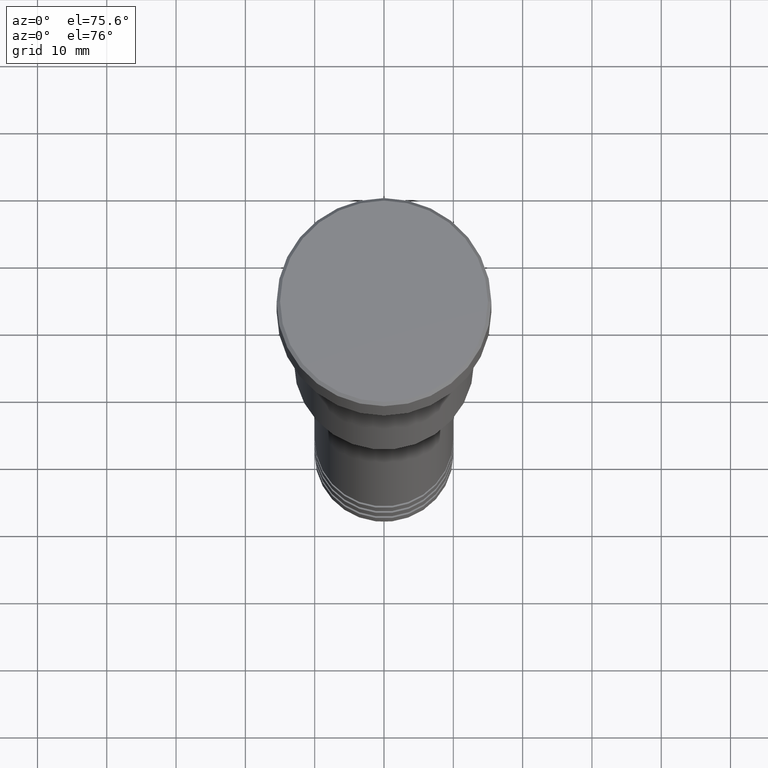
[diagram: clean part render]
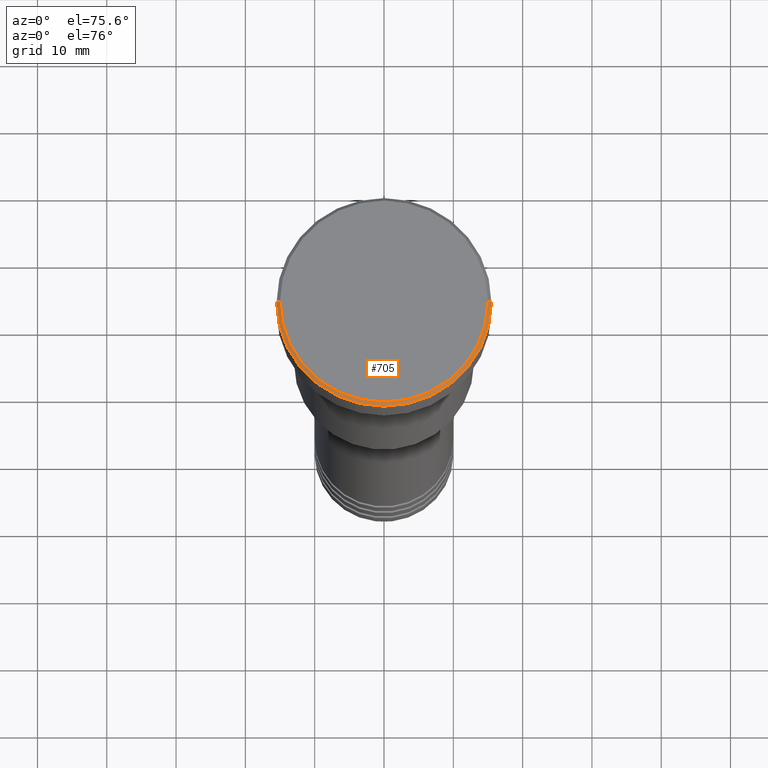
[diagram: same view with one face highlighted and labeled with its STEP entity id]
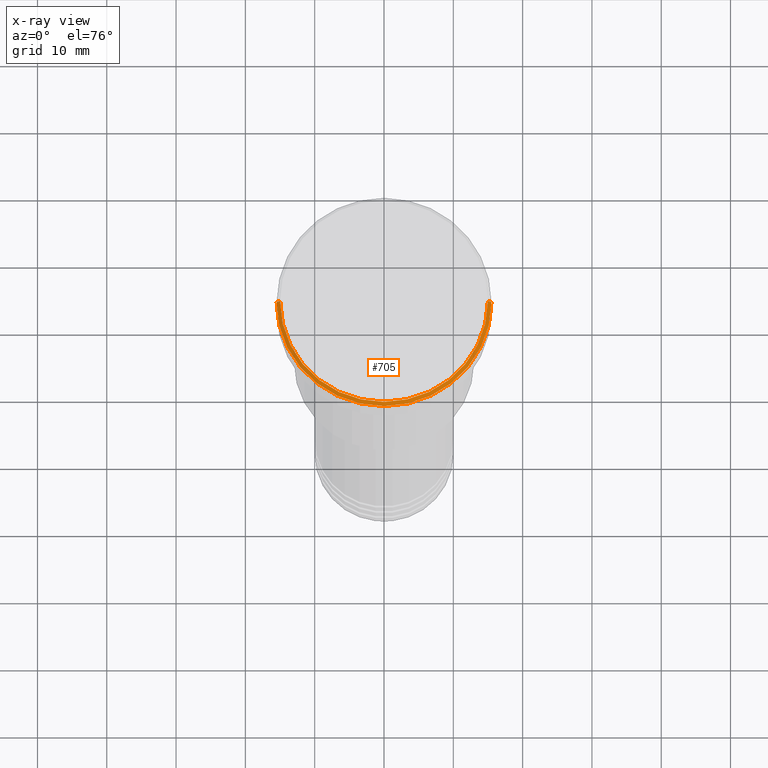
[diagram: x-ray of the same camera — body ghosted, the highlighted face saturated]
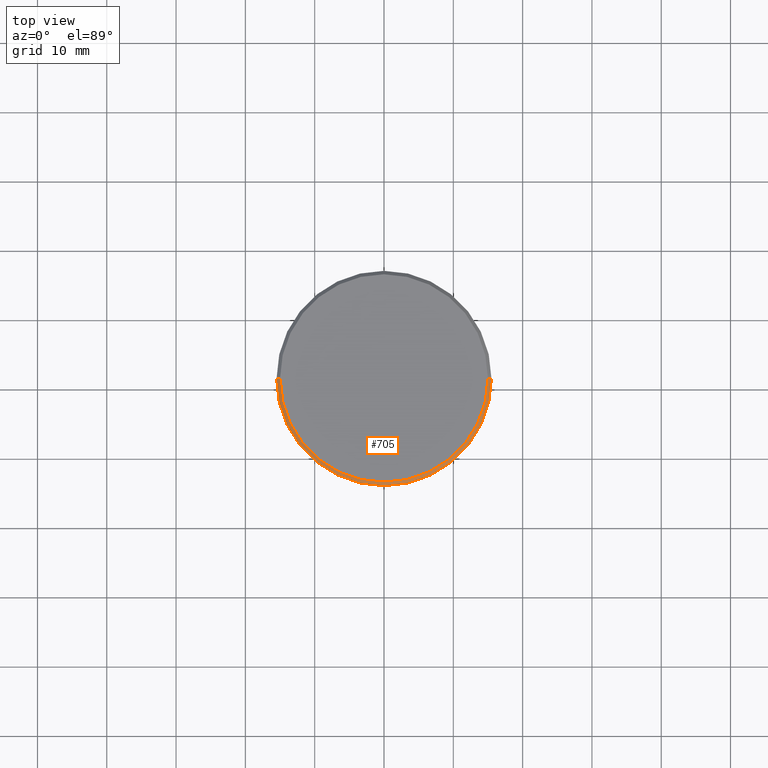
[diagram: same view with one face highlighted and labeled with its STEP entity id]
A machine part, auxiliary view. The second image highlights one B-rep face of the part: STEP entity #705.
The next image is the same camera in x-ray: the body ghosted, the highlighted face saturated — about 0% of this face is hidden behind the body in this view.
A second angle (top view) of the same face is appended — the face is thin or edge-on in the first view.
In plain terms, the highlighted conical surface has half-angle 45 deg.
Its self-contained STEP definition (entity closure, byte-faithful):
#3 = DIRECTION ( 'NONE',  ( -0.000000000000000000, -0.000000000000000000, 1.000000000000000000 ) ) ;
#93 = AXIS2_PLACEMENT_3D ( 'NONE', #148, #165, #520 ) ;
#94 = CARTESIAN_POINT ( 'NONE',  ( 15.00000000000001421, 1.836970198721031561E-15, 0.000000000000000000 ) ) ;
#101 = CARTESIAN_POINT ( 'NONE',  ( 0.000000000000000000, 0.000000000000000000, 0.000000000000000000 ) ) ;
#148 = CARTESIAN_POINT ( 'NONE',  ( 0.000000000000000000, 0.000000000000000000, -0.4999999999999987232 ) ) ;
#160 = CARTESIAN_POINT ( 'NONE',  ( -15.50000000000000000, 1.898202538678397557E-15, -0.4999999999999987232 ) ) ;
#165 = DIRECTION ( 'NONE',  ( 0.000000000000000000, 0.000000000000000000, -1.000000000000000000 ) ) ;
#191 = CARTESIAN_POINT ( 'NONE',  ( 15.00000000000001421, 1.867586368699714559E-15, 0.000000000000000000 ) ) ;
#238 = CARTESIAN_POINT ( 'NONE',  ( -15.00000000000001421, 0.000000000000000000, 0.000000000000000000 ) ) ;
#257 = VERTEX_POINT ( 'NONE', #874 ) ;
#272 = LINE ( 'NONE', #94, #481 ) ;
#337 = DIRECTION ( 'NONE',  ( -0.7071067811865389130, 0.000000000000000000, -0.7071067811865561215 ) ) ;
#375 = ORIENTED_EDGE ( 'NONE', *, *, #382, .F. ) ;
#382 = EDGE_CURVE ( 'NONE', #996, #257, #272, .T. ) ;
#454 = DIRECTION ( 'NONE',  ( 0.7071067811865389130, 8.659560562354828088E-17, -0.7071067811865561215 ) ) ;
#468 = VERTEX_POINT ( 'NONE', #160 ) ;
#481 = VECTOR ( 'NONE', #454, 1000.000000000000000 ) ;
#520 = DIRECTION ( 'NONE',  ( 1.000000000000000000, 0.000000000000000000, 0.000000000000000000 ) ) ;
#529 = VERTEX_POINT ( 'NONE', #238 ) ;
#589 = AXIS2_PLACEMENT_3D ( 'NONE', #101, #3, #920 ) ;
#597 = EDGE_CURVE ( 'NONE', #529, #468, #789, .T. ) ;
#637 = CONICAL_SURFACE ( 'NONE', #1077, 15.00000000000001421, 0.7853981633974361776 ) ;
#679 = ORIENTED_EDGE ( 'NONE', *, *, #913, .F. ) ;
#705 = ADVANCED_FACE ( 'NONE', ( #839 ), #637, .T. ) ;
#743 = ORIENTED_EDGE ( 'NONE', *, *, #863, .F. ) ;
#759 = DIRECTION ( 'NONE',  ( 0.000000000000000000, 0.000000000000000000, -1.000000000000000000 ) ) ;
#766 = EDGE_LOOP ( 'NONE', ( #375, #679, #791, #743 ) ) ;
#789 = LINE ( 'NONE', #884, #919 ) ;
#791 = ORIENTED_EDGE ( 'NONE', *, *, #597, .T. ) ;
#801 = CIRCLE ( 'NONE', #93, 15.50000000000000000 ) ;
#839 = FACE_OUTER_BOUND ( 'NONE', #766, .T. ) ;
#846 = CARTESIAN_POINT ( 'NONE',  ( 0.000000000000000000, 0.000000000000000000, 0.000000000000000000 ) ) ;
#863 = EDGE_CURVE ( 'NONE', #257, #468, #801, .T. ) ;
#874 = CARTESIAN_POINT ( 'NONE',  ( 15.50000000000000000, 0.000000000000000000, -0.4999999999999987232 ) ) ;
#884 = CARTESIAN_POINT ( 'NONE',  ( -15.00000000000001421, 0.000000000000000000, 0.000000000000000000 ) ) ;
#913 = EDGE_CURVE ( 'NONE', #529, #996, #946, .T. ) ;
#919 = VECTOR ( 'NONE', #337, 1000.000000000000000 ) ;
#920 = DIRECTION ( 'NONE',  ( 1.000000000000000000, 0.000000000000000000, 0.000000000000000000 ) ) ;
#943 = DIRECTION ( 'NONE',  ( -1.000000000000000000, 0.000000000000000000, 0.000000000000000000 ) ) ;
#946 = CIRCLE ( 'NONE', #589, 15.00000000000001421 ) ;
#996 = VERTEX_POINT ( 'NONE', #191 ) ;
#1077 = AXIS2_PLACEMENT_3D ( 'NONE', #846, #759, #943 ) ;